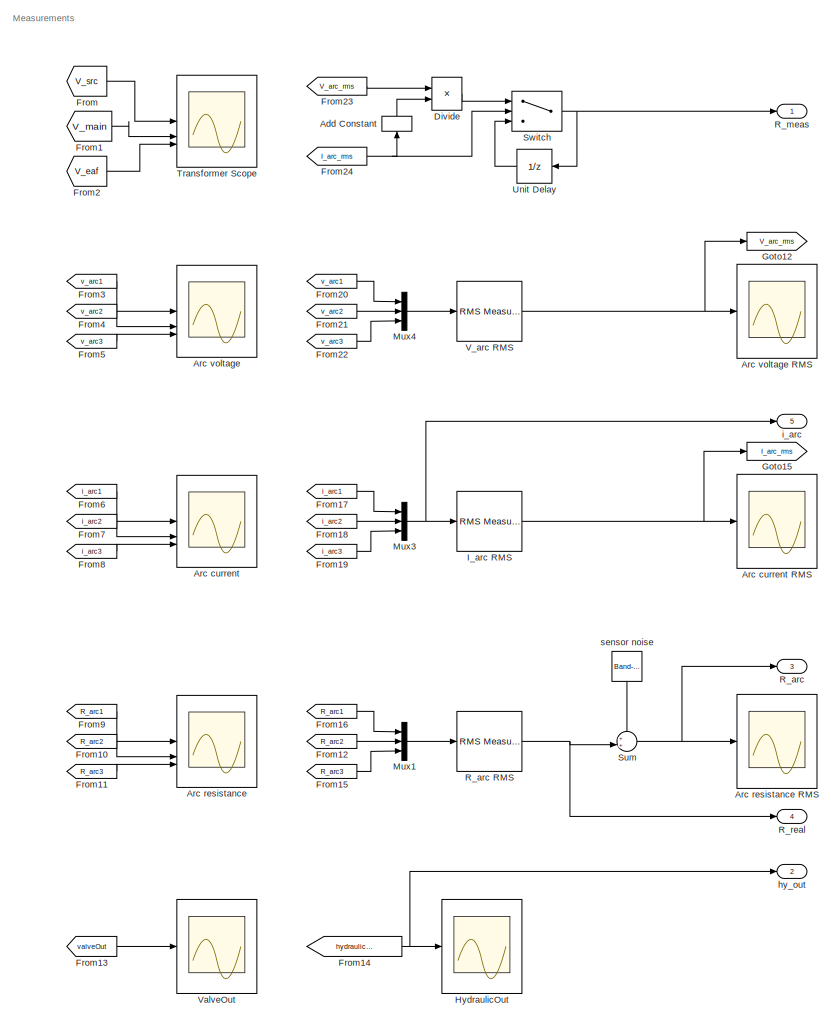
[diagram: root canvas - part 1/6, right side, full height]
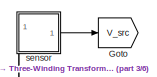
[diagram: root canvas - part 2/6, top left region]
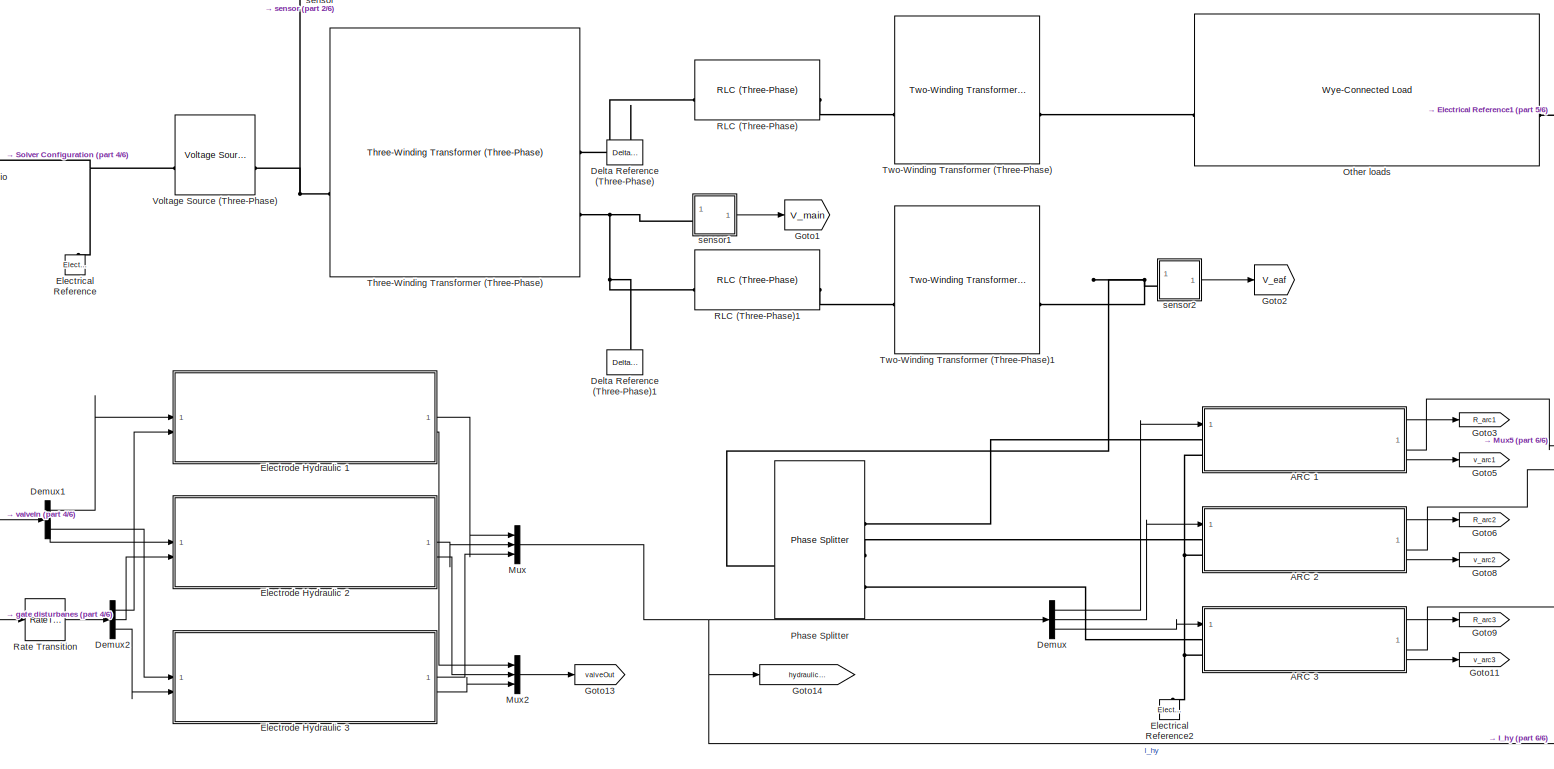
[diagram: root canvas - part 3/6, left side, full height]
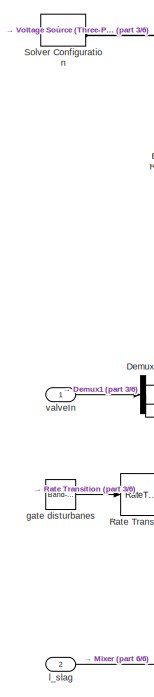
[diagram: root canvas - part 4/6, middle left region]
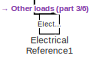
[diagram: root canvas - part 5/6, top center region]
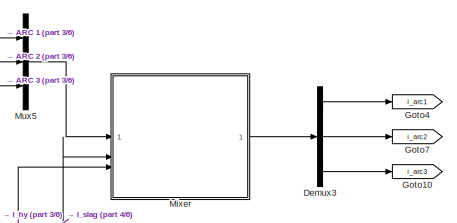
[diagram: root canvas - part 6/6, central region]
MODEL slx_b069187bb94b
KIND model
CONFIG AbsTol = auto
CONFIG EnableMultiTasking = off
CONFIG FixedStep = auto
CONFIG MaxStep = auto
CONFIG MinStep = auto
CONFIG RelTol = 1e-3
CONFIG SampleTimeConstraint = Unconstrained
CONFIG SolverName = FixedStepAuto
CONFIG StartTime = 0.0
CONFIG StopTime = 2
WORKSPACE source: mxarray member
WORKSPACE Ap = 0.0314
WORKSPACE Ct = 2.4e-12
WORKSPACE Fforce = 90000
WORKSPACE GateChoice: string (value not decoded)
WORKSPACE Gmass = 9000
WORKSPACE K1 = 221320
WORKSPACE K2 = 0.00072
WORKSPACE Kc = 1.68e-09
WORKSPACE Kq = 1.63
WORKSPACE Ksvl = 0.0276
WORKSPACE Ksvr = 0.04
WORKSPACE U_PhaseRMS = 243
WORKSPACE Ve = 0.11304
WORKSPACE Xd = 0.003
WORKSPACE Xmax = 0.006
WORKSPACE Xmin = -0.004
WORKSPACE beta_e = 700000000
WORKSPACE delay_t = 1e-06
WORKSPACE dl = -0.014
WORKSPACE dr = 0.014
WORKSPACE k = 0.15
WORKSPACE lambda = 2
WORKSPACE rd = 0.0004
BLOCK [SubSystem] ARC 1
  ReferencedSubsystem = Arc_System
BLOCK [SubSystem] ARC 2
  ReferencedSubsystem = Arc_System
BLOCK [SubSystem] ARC 3
  ReferencedSubsystem = Arc_System
BLOCK [Bias] Add Constant
  Bias = 1e-6
  NameLocation = left
  SaturateOnIntegerOverflow = off
BLOCK [Scope] Arc current
  ActiveDisplayYMaximum = 41974.004776580055
  ActiveDisplayYMinimum = -41973.164268779663
  DataLoggingVariableName = ScopeData2
  Floating = off
  GraphicalSettings = {"Style":{"BackgroundColor":[0.12941176470588237,0.12941176470588237,0.12941176470588237],"AxesColor":[0.07058823529411765,0.07058823529411765,0.07058823529411765],"LabelsColor":[0.8509803921568627,0.8509803921568627,0.8509803921568627],"PreserveColors":false,"Visible":[true,true,true],"LineStyle":["-","-","-"],"LineWidth":[1.5,1.5,1.5],"BarWidth":[0.9,0.9,0.9],"LineColor":["auto","auto","auto"],"...<+2226ch>
  MultipleDisplayCache = [{"MaxYLimMag":41974.004776580055,"MaxYLimReal":41974.004776580055,"MinYLimMag":0,"MinYLimReal":-41973.164268779663,"PlotAsMagnitudePhase":false,"ShowGrid":true,"ShowLegend":false,"Title":"%<SignalLabel>","YLabel":""}]
  NumInputPorts = 3
  ScopeFrameLocation = window
  WasSavedAsWebScope = on
  WindowPosition = [151.000000,185.000000,851.000000,593.000000,]
BLOCK [Scope] Arc current RMS
  ActiveDisplayYMaximum = 27499.363023289359
  ActiveDisplayYMinimum = -3055.4847803654839
  DataLoggingVariableName = ScopeData7
  Floating = off
  GraphicalSettings = {"Style":{"BackgroundColor":[0.12941176470588237,0.12941176470588237,0.12941176470588237],"AxesColor":[0.07058823529411765,0.07058823529411765,0.07058823529411765],"LabelsColor":[0.8509803921568627,0.8509803921568627,0.8509803921568627],"PreserveColors":false,"Visible":[true,true,true],"LineStyle":["-","-","-"],"LineWidth":[1.5,1.5,1.5],"BarWidth":[0.9,0.9,0.9],"LineColor":["auto","auto","auto"],"...<+2244ch>
  MultipleDisplayCache = [{"MaxYLimMag":27499.363023289359,"MaxYLimReal":27499.363023289359,"MinYLimMag":0,"MinYLimReal":-3055.4847803654839,"PlotAsMagnitudePhase":false,"ShowGrid":true,"ShowLegend":true,"Title":"%<SignalLabel>","YLabel":""}]
  NumInputPorts = 1
  ScopeFrameLocation = window
  ShowLegend = on
  WasSavedAsWebScope = on
  WindowPosition = [572.000000,287.000000,879.000000,582.000000,]
BLOCK [Scope] Arc resistance
  ActiveDisplayYMaximum = 1.0569916577736953
  ActiveDisplayYMinimum = -0.1125194623785952
  DataLoggingVariableName = ScopeData3
  Floating = off
  GraphicalSettings = {"Style":{"BackgroundColor":[0.12941176470588237,0.12941176470588237,0.12941176470588237],"AxesColor":[0.07058823529411765,0.07058823529411765,0.07058823529411765],"LabelsColor":[0.8509803921568627,0.8509803921568627,0.8509803921568627],"PreserveColors":false,"Visible":[true,true,true],"LineStyle":["-","-","-"],"LineWidth":[1.5,1.5,1.5],"BarWidth":[0.9,0.9,0.9],"LineColor":["auto","auto","auto"],"...<+2204ch>
  MultipleDisplayCache = [{"MaxYLimMag":1.0569916577736953,"MaxYLimReal":1.0569916577736953,"MinYLimMag":0,"MinYLimReal":-0.1125194623785952,"PlotAsMagnitudePhase":false,"ShowGrid":true,"ShowLegend":false,"Title":"%<SignalLabel>","YLabel":""}]
  NumInputPorts = 3
  ScopeFrameLocation = window
  WasSavedAsWebScope = on
  WindowPosition = [68.000000,360.000000,899.000000,606.000000,]
BLOCK [Scope] Arc resistance RMS
  ActiveDisplayYMaximum = 0.7518142519663995
  ActiveDisplayYMinimum = -0.083534916885155491
  DataLoggingVariableName = ScopeData4
  Floating = off
  GraphicalSettings = {"Style":{"BackgroundColor":[0.12941176470588237,0.12941176470588237,0.12941176470588237],"AxesColor":[0.07058823529411765,0.07058823529411765,0.07058823529411765],"LabelsColor":[0.8509803921568627,0.8509803921568627,0.8509803921568627],"PreserveColors":false,"Visible":[true,true,true],"LineStyle":["-","-","-"],"LineWidth":[1.5,1.5,1.5],"BarWidth":[0.9,0.9,0.9],"LineColor":["auto","auto","auto"],"...<+2252ch>
  MultipleDisplayCache = [{"MaxYLimMag":0.7518142519663995,"MaxYLimReal":0.7518142519663995,"MinYLimMag":0,"MinYLimReal":-0.083534916885155491,"PlotAsMagnitudePhase":false,"ShowGrid":true,"ShowLegend":true,"Title":"%<SignalLabel>","YLabel":""}]
  NumInputPorts = 1
  ScopeFrameLocation = window
  ShowLegend = on
  WasSavedAsWebScope = on
  WindowPosition = [572.000000,287.000000,879.000000,582.000000,]
BLOCK [Scope] Arc voltage
  ActiveDisplayYMaximum = 415.43919686304929
  ActiveDisplayYMinimum = 351.3925306602107
  DataLoggingVariableName = ScopeData1
  Floating = off
  GraphicalSettings = {"Style":{"BackgroundColor":[0.12941176470588237,0.12941176470588237,0.12941176470588237],"AxesColor":[0.07058823529411765,0.07058823529411765,0.07058823529411765],"LabelsColor":[0.8509803921568627,0.8509803921568627,0.8509803921568627],"PreserveColors":false,"Visible":[true,true,true],"LineStyle":["-","-","-"],"LineWidth":[1.5,1.5,1.5],"BarWidth":[0.9,0.9,0.9],"LineColor":["auto","auto","auto"],"...<+2218ch>
  MultipleDisplayCache = [{"MaxYLimMag":687.91885636804818,"MaxYLimReal":415.43919686304929,"MinYLimMag":0,"MinYLimReal":351.3925306602107,"PlotAsMagnitudePhase":false,"ShowGrid":true,"ShowLegend":true,"Title":"%<SignalLabel>","YLabel":""}]
  NumInputPorts = 3
  ScopeFrameLocation = window
  ShowLegend = on
  WasSavedAsWebScope = on
  WindowPosition = [408.000000,247.000000,877.000000,598.000000,]
BLOCK [Scope] Arc voltage RMS
  ActiveDisplayYMaximum = 427.18683036188185
  ActiveDisplayYMinimum = -47.465203373542423
  DataLoggingVariableName = ScopeData8
  Floating = off
  GraphicalSettings = {"Style":{"BackgroundColor":[0.12941176470588237,0.12941176470588237,0.12941176470588237],"AxesColor":[0.07058823529411765,0.07058823529411765,0.07058823529411765],"LabelsColor":[0.8509803921568627,0.8509803921568627,0.8509803921568627],"PreserveColors":false,"Visible":[true,true,true],"LineStyle":["-","-","-"],"LineWidth":[1.5,1.5,1.5],"BarWidth":[0.9,0.9,0.9],"LineColor":["auto","auto","auto"],"...<+2248ch>
  MultipleDisplayCache = [{"MaxYLimMag":427.18683036188185,"MaxYLimReal":427.18683036188185,"MinYLimMag":0,"MinYLimReal":-47.465203373542423,"PlotAsMagnitudePhase":false,"ShowGrid":true,"ShowLegend":true,"Title":"%<SignalLabel>","YLabel":""}]
  NumInputPorts = 1
  ScopeFrameLocation = window
  ShowLegend = on
  WasSavedAsWebScope = on
  WindowPosition = [703.000000,288.000000,879.000000,582.000000,]
BLOCK [Reference] Delta Reference (Three-Phase)  REF=ee_lib/Connectors &
References/Delta Reference
(Three-Phase)
  NameLocation = right
  SourceBlock = ee_lib/Connectors &\nReferences/Delta Reference\n(Three-Phase)
  SourceType = Delta Reference\n(Three-Phase)
BLOCK [Reference] Delta Reference (Three-Phase)1  REF=ee_lib/Connectors &
References/Delta Reference
(Three-Phase)
  NameLocation = right
  SourceBlock = ee_lib/Connectors &\nReferences/Delta Reference\n(Three-Phase)
  SourceType = Delta Reference\n(Three-Phase)
BLOCK [Demux] Demux
  Outputs = 3
BLOCK [Demux] Demux1
  Outputs = 3
BLOCK [Demux] Demux2
  Outputs = 3
BLOCK [Demux] Demux3
  Outputs = 3
BLOCK [Product] Divide
  Inputs = */
  OutMin = 0
BLOCK [Reference] Electrical Reference  REF=fl_lib/Electrical/Electrical Elements/Electrical Reference
  NameLocation = right
  SourceBlock = fl_lib/Electrical/Electrical Elements/Electrical Reference
  SourceType = Electrical Reference
BLOCK [Reference] Electrical Reference1  REF=fl_lib/Electrical/Electrical Elements/Electrical Reference
  NameLocation = right
  SourceBlock = fl_lib/Electrical/Electrical Elements/Electrical Reference
  SourceType = Electrical Reference
BLOCK [Reference] Electrical Reference2  REF=fl_lib/Electrical/Electrical Elements/Electrical Reference
  NameLocation = right
  SourceBlock = fl_lib/Electrical/Electrical Elements/Electrical Reference
  SourceType = Electrical Reference
BLOCK [SubSystem] Electrode Hydraulic 1
  ReferencedSubsystem = Electrode_Hydraulic
BLOCK [SubSystem] Electrode Hydraulic 2
  ReferencedSubsystem = Electrode_Hydraulic
BLOCK [SubSystem] Electrode Hydraulic 3
  ReferencedSubsystem = Electrode_Hydraulic
BLOCK [From] From
  GotoTag = V_src
BLOCK [From] From1
  GotoTag = V_main
BLOCK [From] From10
  GotoTag = R_arc2
BLOCK [From] From11
  GotoTag = R_arc3
BLOCK [From] From12
  GotoTag = R_arc2
BLOCK [From] From13
  GotoTag = valveOut
BLOCK [From] From14
  GotoTag = hydraulicOut
BLOCK [From] From15
  GotoTag = R_arc3
BLOCK [From] From16
  GotoTag = R_arc1
BLOCK [From] From17
  GotoTag = i_arc1
BLOCK [From] From18
  GotoTag = i_arc2
BLOCK [From] From19
  GotoTag = i_arc3
BLOCK [From] From2
  GotoTag = V_eaf
BLOCK [From] From20
  GotoTag = v_arc1
BLOCK [From] From21
  GotoTag = v_arc2
BLOCK [From] From22
  GotoTag = v_arc3
BLOCK [From] From23
  GotoTag = V_arc_rms
BLOCK [From] From24
  GotoTag = I_arc_rms
BLOCK [From] From3
  GotoTag = v_arc1
BLOCK [From] From4
  GotoTag = v_arc2
BLOCK [From] From5
  GotoTag = v_arc3
BLOCK [From] From6
  GotoTag = i_arc1
BLOCK [From] From7
  GotoTag = i_arc2
BLOCK [From] From8
  GotoTag = i_arc3
BLOCK [From] From9
  GotoTag = R_arc1
BLOCK [Goto] Goto
  GotoTag = V_src
BLOCK [Goto] Goto1
  GotoTag = V_main
BLOCK [Goto] Goto10
  GotoTag = i_arc3
BLOCK [Goto] Goto11
  GotoTag = v_arc3
BLOCK [Goto] Goto12
  GotoTag = V_arc_rms
BLOCK [Goto] Goto13
  GotoTag = valveOut
BLOCK [Goto] Goto14
  GotoTag = hydraulicOut
BLOCK [Goto] Goto15
  GotoTag = I_arc_rms
BLOCK [Goto] Goto2
  GotoTag = V_eaf
BLOCK [Goto] Goto3
  GotoTag = R_arc1
BLOCK [Goto] Goto4
  GotoTag = i_arc1
BLOCK [Goto] Goto5
  GotoTag = v_arc1
BLOCK [Goto] Goto6
  GotoTag = R_arc2
BLOCK [Goto] Goto7
  GotoTag = i_arc2
BLOCK [Goto] Goto8
  GotoTag = v_arc2
BLOCK [Goto] Goto9
  GotoTag = R_arc3
BLOCK [Scope] HydraulicOut
  ActiveDisplayYMaximum = 0.6160273324010842
  ActiveDisplayYMinimum = 0.49663037739310889
  DataLoggingVariableName = ScopeData6
  Floating = off
  GraphicalSettings = {"AxesScalingProperties":{"AlignXAxis":"Center","AlignYAxis":"Center","AutoScaleXAxisLimits":false,"AxesScaling":"Manual","AxesScalingNumUpdates":10,"ExpandOnly":true,"ScaleAxesLimitsAtStop":false,"XAxisDataRange":100,"YAxisDataRange":80},"DisplayProperties":{"ColorOrder":["auto","auto","auto","auto","auto","auto","auto","auto","auto","auto","auto","auto","auto","auto","auto","auto","auto","auto",...<+2378ch>
  MultipleDisplayCache = [{"MaxYLimMag":0.59955996129524969,"MaxYLimReal":0.6160273324010842,"MinYLimMag":0.54486284051540723,"MinYLimReal":0.49663037739310889,"PlotAsMagnitudePhase":false,"ShowGrid":true,"ShowLegend":true,"Title":"%<SignalLabel>","YLabel":""}]
  NumInputPorts = 1
  ScopeFrameLocation = window
  ShowLegend = on
  WasSavedAsWebScope = on
  WindowPosition = [1203.000000,860.000000,1091.000000,606.000000,]
BLOCK [Reference] I_arc RMS  REF=eeRmsMeasurement/RMS
Measurement
  LibrarySourceBlock = ee_sl_lib/Measurements/RMS\nMeasurement
  SourceBlock = eeRmsMeasurement/RMS\nMeasurement
  SourceType = RMS Measurement
BLOCK [ModelReference] Mixer
  ModelNameDialog = harmonics.slx
  ModelReferenceVersion = 1.48
BLOCK [Mux] Mux
  DisplayOption = bar
  Inputs = 3
BLOCK [Mux] Mux1
  DisplayOption = bar
  Inputs = 3
BLOCK [Mux] Mux2
  DisplayOption = bar
  Inputs = 3
BLOCK [Mux] Mux3
  DisplayOption = bar
  Inputs = 3
BLOCK [Mux] Mux4
  DisplayOption = bar
  Inputs = 3
BLOCK [Mux] Mux5
  DisplayOption = bar
  Inputs = 3
BLOCK [Reference] Other loads  REF=ee_lib/Passive/RLC Assemblies/Wye-Connected Load
  SourceBlock = ee_lib/Passive/RLC Assemblies/Wye-Connected Load
  SourceType = Wye-Connected Load
BLOCK [Reference] Phase Splitter  REF=ee_lib/Connectors &
References/Phase Splitter
  NameLocation = top
  SourceBlock = ee_lib/Connectors &\nReferences/Phase Splitter
  SourceType = Phase Splitter
BLOCK [Reference] RLC (Three-Phase)  REF=ee_lib/Passive/RLC Assemblies/RLC (Three-Phase)
  SourceBlock = ee_lib/Passive/RLC Assemblies/RLC (Three-Phase)
  SourceType = RLC (Three-Phase)
BLOCK [Reference] RLC (Three-Phase)1  REF=ee_lib/Passive/RLC Assemblies/RLC (Three-Phase)
  SourceBlock = ee_lib/Passive/RLC Assemblies/RLC (Three-Phase)
  SourceType = RLC (Three-Phase)
BLOCK [Outport] R_arc
  Port = 3
BLOCK [Reference] R_arc RMS  REF=eeRmsMeasurement/RMS
Measurement
  LibrarySourceBlock = ee_sl_lib/Measurements/RMS\nMeasurement
  SourceBlock = eeRmsMeasurement/RMS\nMeasurement
  SourceType = RMS Measurement
BLOCK [Outport] R_meas
BLOCK [Outport] R_real
  Port = 4
BLOCK [RateTransition] Rate Transition
  OutPortSampleTime = Ts_local
BLOCK [Reference] Solver Configuration  REF=nesl_utility/Solver
Configuration
  SourceBlock = nesl_utility/Solver\nConfiguration
  SourceType = Solver\nConfiguration
BLOCK [Sum] Sum
  Inputs = ++|
BLOCK [Switch] Switch
  Criteria = u2 > Threshold
  InputSameDT = off
  SaturateOnIntegerOverflow = off
  Threshold = 1e-6
BLOCK [Reference] Three-Winding Transformer (Three-Phase)  REF=ee_lib/Passive/Transformers/Three-Winding
Transformer
(Three-Phase)
  SourceBlock = ee_lib/Passive/Transformers/Three-Winding\nTransformer\n(Three-Phase)
  SourceType = Three-Winding\nTransformer\n(Three-Phase)
BLOCK [Scope] Transformer Scope
  ActiveDisplayYMaximum = 194453.63939169198
  ActiveDisplayYMinimum = -194454.28422245517
  Floating = off
  GraphicalSettings = {"Style":{"BackgroundColor":[0.12941176470588237,0.12941176470588237,0.12941176470588237],"AxesColor":[0.07058823529411765,0.07058823529411765,0.07058823529411765],"LabelsColor":[0.8509803921568627,0.8509803921568627,0.8509803921568627],"PreserveColors":false,"Visible":[true,true,true,true,true,true,true,true,true],"LineStyle":["-","-","-","-","-","-","-","-","-"],"LineWidth":[1.5,1.5,1.5,1.5,1.5,...<+3574ch>
  LayoutDimensionsString = [3,1]
  MultipleDisplayCache = [{"MaxYLimMag":194454.28422245517,"MaxYLimReal":194453.63939169198,"MinYLimMag":0,"MinYLimReal":-194454.28422245517,"PlotAsMagnitudePhase":false,"ShowGrid":true,"ShowLegend":true,"Title":"%<SignalLabel>","YLabel":""},{"MaxYLimMag":6187.1808993018494,"MaxYLimReal":6187.1546109088786,"MinYLimMag":0,"MinYLimReal":-6187.1808993018494,"PlotAsMagnitudePhase":false,"ShowGrid":true,"ShowLegend":true,"Titl...<+249ch>
  NumInputPorts = 3
  ScopeFrameLocation = window
  ShowLegend = on
  WasSavedAsWebScope = on
  WindowPosition = [148.000000,361.000000,884.000000,575.000000,]
BLOCK [Reference] Two-Winding Transformer (Three-Phase)  REF=ee_lib/Passive/Transformers/Two-Winding
Transformer
(Three-Phase)
  SourceBlock = ee_lib/Passive/Transformers/Two-Winding\nTransformer\n(Three-Phase)
  SourceType = Two-Winding\nTransformer\n(Three-Phase)
BLOCK [Reference] Two-Winding Transformer (Three-Phase)1  REF=ee_lib/Passive/Transformers/Two-Winding
Transformer
(Three-Phase)
  SourceBlock = ee_lib/Passive/Transformers/Two-Winding\nTransformer\n(Three-Phase)
  SourceType = Two-Winding\nTransformer\n(Three-Phase)
BLOCK [UnitDelay] Unit Delay
  HasFrameUpgradeWarning = on
  SampleTime = -1
BLOCK [Reference] V_arc RMS  REF=eeRmsMeasurement/RMS
Measurement
  LibrarySourceBlock = ee_sl_lib/Measurements/RMS\nMeasurement
  SourceBlock = eeRmsMeasurement/RMS\nMeasurement
  SourceType = RMS Measurement
BLOCK [Scope] ValveOut
  ActiveDisplayYMaximum = 0.0070571271128927245
  ActiveDisplayYMinimum = -0.0035141440160345178
  DataLoggingVariableName = ScopeData5
  Floating = off
  GraphicalSettings = {"Style":{"BackgroundColor":[0.12941176470588237,0.12941176470588237,0.12941176470588237],"AxesColor":[0.07058823529411765,0.07058823529411765,0.07058823529411765],"LabelsColor":[0.8509803921568627,0.8509803921568627,0.8509803921568627],"PreserveColors":false,"Visible":[true,true,true],"LineStyle":["-","-","-"],"LineWidth":[1.5,1.5,1.5],"BarWidth":[0.9,0.9,0.9],"LineColor":["auto","auto","auto"],"...<+2312ch>
  MultipleDisplayCache = [{"MaxYLimMag":0.0070571271128927245,"MaxYLimReal":0.0070571271128927245,"MinYLimMag":0,"MinYLimReal":-0.0035141440160345178,"PlotAsMagnitudePhase":false,"ShowGrid":true,"ShowLegend":true,"Title":"%<SignalLabel>","YLabel":""}]
  NumInputPorts = 1
  ScopeFrameLocation = window
  ShowLegend = on
  WasSavedAsWebScope = on
  WindowPosition = [38.000000,402.000000,1093.000000,606.000000,]
BLOCK [Reference] Voltage Source (Three-Phase)  REF=ee_lib/Sources/Voltage
Source
(Three-Phase)
  SourceBlock = ee_lib/Sources/Voltage\nSource\n(Three-Phase)
  SourceType = Voltage\nSource\n(Three-Phase)
BLOCK [Reference] gate disturbanes  REF=simulink/Sources/Band-Limited
White Noise
  SourceBlock = simulink/Sources/Band-Limited\nWhite Noise
  SourceType = Band-Limited White Noise.
BLOCK [Outport] hy_out
  Port = 2
BLOCK [Outport] i_arc
  NameLocation = top
  Port = 5
BLOCK [Inport] l_slag
  Port = 2
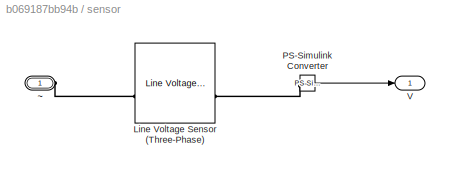
BLOCK [SubSystem] sensor
BLOCK [Reference] sensor noise  REF=simulink/Sources/Band-Limited
White Noise
  NameLocation = left
  SourceBlock = simulink/Sources/Band-Limited\nWhite Noise
  SourceType = Band-Limited White Noise.
BLOCK [Reference] sensor/Line Voltage Sensor (Three-Phase)  REF=ee_lib/Sensors &
Transducers/Line Voltage Sensor
(Three-Phase)
  SourceBlock = ee_lib/Sensors &\nTransducers/Line Voltage Sensor\n(Three-Phase)
  SourceType = Line Voltage Sensor\n(Three-Phase)
BLOCK [Reference] sensor/PS-Simulink Converter  REF=nesl_utility/PS-Simulink
Converter
  SourceBlock = nesl_utility/PS-Simulink\nConverter
  SourceType = PS-Simulink\nConverter
BLOCK [Outport] sensor/V
BLOCK [PMIOPort] sensor/~
  Side = Left
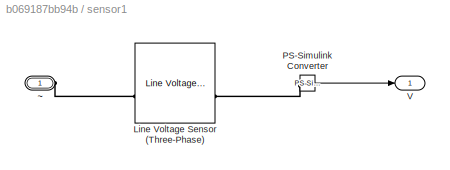
BLOCK [SubSystem] sensor1
BLOCK [Reference] sensor1/Line Voltage Sensor (Three-Phase)  REF=ee_lib/Sensors &
Transducers/Line Voltage Sensor
(Three-Phase)
  SourceBlock = ee_lib/Sensors &\nTransducers/Line Voltage Sensor\n(Three-Phase)
  SourceType = Line Voltage Sensor\n(Three-Phase)
BLOCK [Reference] sensor1/PS-Simulink Converter  REF=nesl_utility/PS-Simulink
Converter
  SourceBlock = nesl_utility/PS-Simulink\nConverter
  SourceType = PS-Simulink\nConverter
BLOCK [Outport] sensor1/V
BLOCK [PMIOPort] sensor1/~
  Side = Left
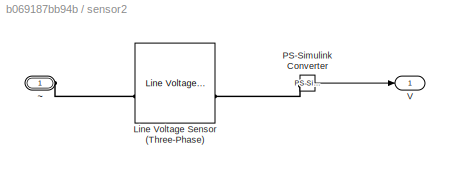
BLOCK [SubSystem] sensor2
BLOCK [Reference] sensor2/Line Voltage Sensor (Three-Phase)  REF=ee_lib/Sensors &
Transducers/Line Voltage Sensor
(Three-Phase)
  SourceBlock = ee_lib/Sensors &\nTransducers/Line Voltage Sensor\n(Three-Phase)
  SourceType = Line Voltage Sensor\n(Three-Phase)
BLOCK [Reference] sensor2/PS-Simulink Converter  REF=nesl_utility/PS-Simulink
Converter
  SourceBlock = nesl_utility/PS-Simulink\nConverter
  SourceType = PS-Simulink\nConverter
BLOCK [Outport] sensor2/V
BLOCK [PMIOPort] sensor2/~
  Side = Left
BLOCK [Inport] valveIn
ANNOTATION (root): Measurements
LINE ARC 1:1 -> Goto3:1
LINE ARC 1:2 -> Mux5:1
LINE ARC 1:3 -> Goto5:1
LINE ARC 2:1 -> Goto6:1
LINE ARC 2:2 -> Mux5:2
LINE ARC 2:3 -> Goto8:1
LINE ARC 3:1 -> Goto9:1
LINE ARC 3:2 -> Mux5:3
LINE ARC 3:3 -> Goto11:1
LINE Add Constant:1 -> Divide:2
LINE Demux1:1 -> Electrode Hydraulic 1:1
LINE Demux1:2 -> Electrode Hydraulic 2:1
LINE Demux1:3 -> Electrode Hydraulic 3:1
LINE Demux2:1 -> Electrode Hydraulic 1:2
LINE Demux2:2 -> Electrode Hydraulic 2:2
LINE Demux2:3 -> Electrode Hydraulic 3:2
LINE Demux3:1 -> Goto4:1
LINE Demux3:2 -> Goto7:1
LINE Demux3:3 -> Goto10:1
LINE Demux:1 -> ARC 1:1
LINE Demux:2 -> ARC 2:1
LINE Demux:3 -> ARC 3:1
LINE Divide:1 -> Switch:1
LINE Electrode Hydraulic 1:1 -> Mux:1
LINE Electrode Hydraulic 1:2 -> Mux2:1
LINE Electrode Hydraulic 2:1 -> Mux:2
LINE Electrode Hydraulic 2:2 -> Mux2:2
LINE Electrode Hydraulic 3:1 -> Mux:3
LINE Electrode Hydraulic 3:2 -> Mux2:3
LINE From10:1 -> Arc resistance:2
LINE From11:1 -> Arc resistance:3
LINE From12:1 -> Mux1:2
LINE From13:1 -> ValveOut:1
NET From14:1 -> HydraulicOut:1, hy_out:1
LINE From15:1 -> Mux1:3
LINE From16:1 -> Mux1:1
LINE From17:1 -> Mux3:1
LINE From18:1 -> Mux3:2
LINE From19:1 -> Mux3:3
LINE From1:1 -> Transformer Scope:2
LINE From20:1 -> Mux4:1
LINE From21:1 -> Mux4:2
LINE From22:1 -> Mux4:3
LINE From23:1 -> Divide:1
NET From24:1 -> Add Constant:1, Switch:2
LINE From2:1 -> Transformer Scope:3
LINE From3:1 -> Arc voltage:1
LINE From4:1 -> Arc voltage:2
LINE From5:1 -> Arc voltage:3
LINE From6:1 -> Arc current:1
LINE From7:1 -> Arc current:2
LINE From8:1 -> Arc current:3
LINE From9:1 -> Arc resistance:1
LINE From:1 -> Transformer Scope:1
NET I_arc RMS:1 -> Arc current RMS:1, Goto15:1
LINE Mixer:1 -> Demux3:1
LINE Mux1:1 -> R_arc RMS:1
LINE Mux2:1 -> Goto13:1
NET Mux3:1 -> I_arc RMS:1, i_arc:1
LINE Mux4:1 -> V_arc RMS:1
LINE Mux5:1 -> Mixer:1
NET Mux:1 -> Demux:1, Goto14:1, Mixer:3
NET R_arc RMS:1 -> R_real:1, Sum:2
LINE Rate Transition:1 -> Demux2:1
NET Sum:1 -> Arc resistance RMS:1, R_arc:1
NET Switch:1 -> R_meas:1, Unit Delay:1
LINE Unit Delay:1 -> Switch:3
NET V_arc RMS:1 -> Arc voltage RMS:1, Goto12:1
LINE gate disturbanes:1 -> Rate Transition:1
LINE l_slag:1 -> Mixer:2
LINE sensor noise:1 -> Sum:1
LINE sensor/PS-Simulink Converter:1 -> sensor/V:1
LINE sensor1/PS-Simulink Converter:1 -> sensor1/V:1
LINE sensor1:1 -> Goto1:1
LINE sensor2/PS-Simulink Converter:1 -> sensor2/V:1
LINE sensor2:1 -> Goto2:1
LINE sensor:1 -> Goto:1
LINE valveIn:1 -> Demux1:1
PLINE ARC 1:LConn1 -- Phase Splitter:RConn1
PNET net1: ARC 1:LConn2 -- ARC 2:LConn2 -- ARC 3:LConn2 -- Electrical Reference2:LConn1
PLINE ARC 2:LConn1 -- Phase Splitter:RConn2
PLINE ARC 3:LConn1 -- Phase Splitter:RConn3
PNET net2: Delta Reference (Three-Phase)1:LConn1 -- RLC (Three-Phase)1:LConn1 -- Three-Winding Transformer (Three-Phase):RConn2 -- sensor1:LConn1
PNET net3: Delta Reference (Three-Phase):LConn1 -- RLC (Three-Phase):LConn1 -- Three-Winding Transformer (Three-Phase):RConn1
PLINE Electrical Reference1:LConn1 -- Other loads:RConn1
PNET net4: Electrical Reference:LConn1 -- Solver Configuration:RConn1 -- Voltage Source (Three-Phase):LConn1
PLINE Other loads:LConn1 -- Two-Winding Transformer (Three-Phase):RConn1
PNET net5: Phase Splitter:LConn1 -- Two-Winding Transformer (Three-Phase)1:RConn1 -- sensor2:LConn1
PLINE RLC (Three-Phase)1:RConn1 -- Two-Winding Transformer (Three-Phase)1:LConn1
PLINE RLC (Three-Phase):RConn1 -- Two-Winding Transformer (Three-Phase):LConn1
PNET net6: Three-Winding Transformer (Three-Phase):LConn1 -- Voltage Source (Three-Phase):RConn1 -- sensor:LConn1
PLINE sensor/Line Voltage Sensor (Three-Phase):LConn1 -- sensor/~:RConn1
PLINE sensor/Line Voltage Sensor (Three-Phase):RConn1 -- sensor/PS-Simulink Converter:LConn1
PLINE sensor1/Line Voltage Sensor (Three-Phase):LConn1 -- sensor1/~:RConn1
PLINE sensor1/Line Voltage Sensor (Three-Phase):RConn1 -- sensor1/PS-Simulink Converter:LConn1
PLINE sensor2/Line Voltage Sensor (Three-Phase):LConn1 -- sensor2/~:RConn1
PLINE sensor2/Line Voltage Sensor (Three-Phase):RConn1 -- sensor2/PS-Simulink Converter:LConn1
note: NET lines group one-source signal fan-out (src -> all destinations, sorted); 1:1 wires keep LINE; PNET lines group multi-terminal physical nets as a canonical sorted terminal list (undirected conserving connections); 2-terminal nets keep the pairwise PLINE form
